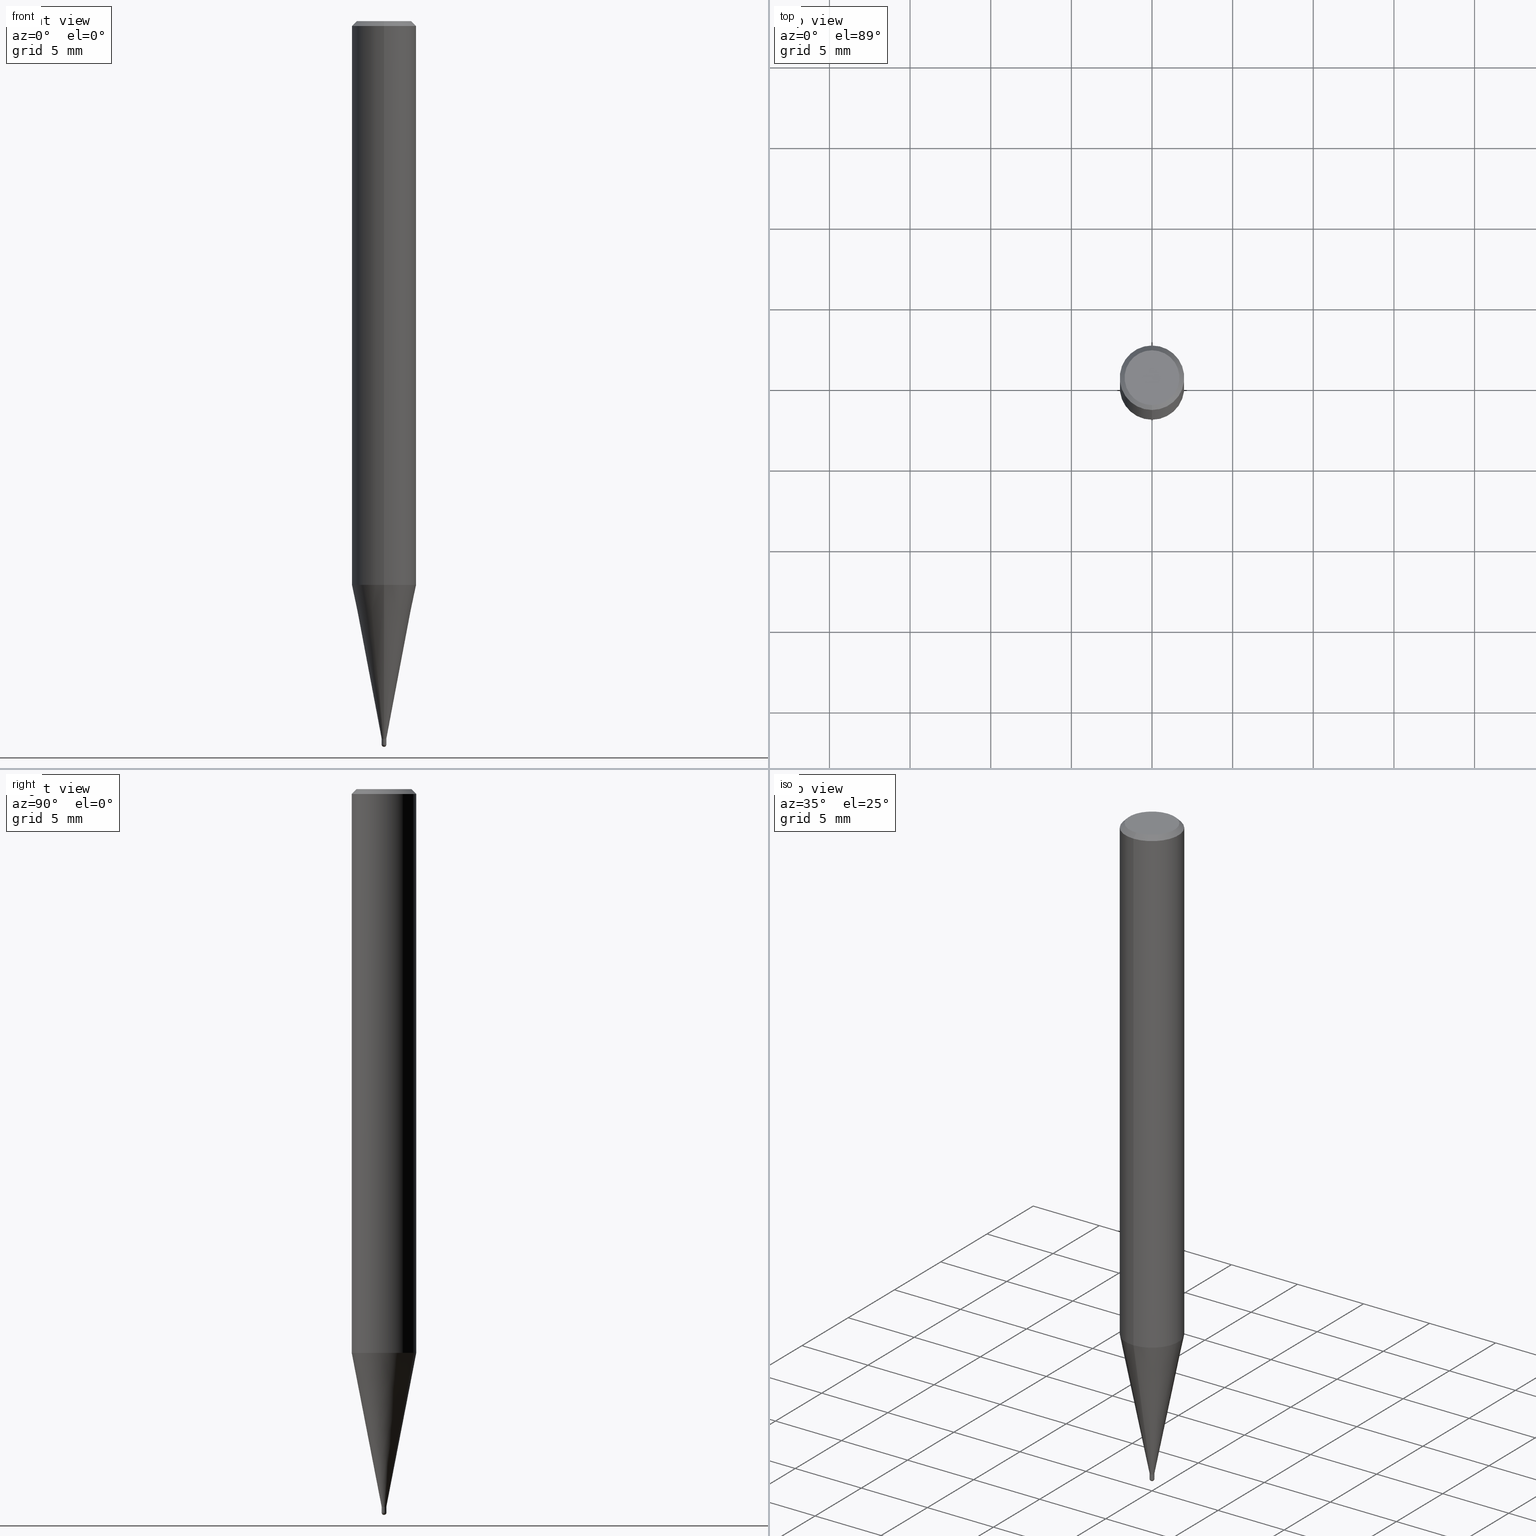
[diagram: canonical four-view strip — front | top / right | iso, engineering-drawing reading convention]
A machine part, canonical four-view strip (front | top / right | iso — engineering-drawing reading convention). The complete STEP part file that produces these views, byte-faithful:
ISO-10303-21;
HEADER;
FILE_DESCRIPTION(('no description'),'unknown implementation level');
FILE_NAME('CSELB2003-005-Huellk.stp','  ',('CIMSOURCE GmbH'),('CADClick - KiM GmbH - www.kimweb.de'),'unknown preprocess','ACIS','unknown authorization');
FILE_SCHEMA(('automotive_design'));
ENDSEC;
DATA;
#1=MECHANICAL_DESIGN_GEOMETRIC_PRESENTATION_REPRESENTATION(' ',(#14,#15,#16,#17,#18,#19,#20,#21,#22,#23,#24,#25,#26,#27,#28,#29,#30,#31,#32,#33,#34,#35,#36,#37,#38,#39,#40,#41,#42,#43,#44,#45,#46,#47,#48,#49,#50,#51,#52,#53,#54,#55,#56,#57,#58,#59,#60,#61,#62,#63,#64,#65,#66,#67,#68,#69,#70,#71,#72,#73,#74),#10);
#2=PRODUCT_DEFINITION_CONTEXT('',#75,'design');
#3=APPLICATION_PROTOCOL_DEFINITION('INTERNATIONAL STANDARD','automotive_design',1994,#75);
#4=PRODUCT_CATEGORY_RELATIONSHIP('NONE','NONE',#76,#77);
#5=SHAPE_DEFINITION_REPRESENTATION(#78,#79);
#6=PRODUCT_DEFINITION_CONTEXT('',#80,'design');
#7=APPLICATION_PROTOCOL_DEFINITION('INTERNATIONAL STANDARD','automotive_design',1994,#80);
#8=PRODUCT_CATEGORY_RELATIONSHIP('NONE','NONE',#81,#82);
#9=SHAPE_DEFINITION_REPRESENTATION(#83,#84);
#10= (GEOMETRIC_REPRESENTATION_CONTEXT(3)GLOBAL_UNCERTAINTY_ASSIGNED_CONTEXT((#87))GLOBAL_UNIT_ASSIGNED_CONTEXT((#89,#90,#91))REPRESENTATION_CONTEXT('NONE','WORKSPACE'));
#14=STYLED_ITEM('',(#93),#94);
#15=STYLED_ITEM('',(#95),#96);
#16=STYLED_ITEM('',(#97),#98);
#17=STYLED_ITEM('',(#99),#100);
#18=STYLED_ITEM('',(#101),#102);
#19=STYLED_ITEM('',(#103),#104);
#20=STYLED_ITEM('',(#105),#106);
#21=STYLED_ITEM('',(#107),#108);
#22=STYLED_ITEM('',(#109),#110);
#23=STYLED_ITEM('',(#111),#112);
#24=STYLED_ITEM('',(#113),#114);
#25=STYLED_ITEM('',(#115),#116);
#26=STYLED_ITEM('',(#117),#118);
#27=STYLED_ITEM('',(#119),#120);
#28=STYLED_ITEM('',(#121),#122);
#29=STYLED_ITEM('',(#123),#124);
#30=STYLED_ITEM('',(#125),#126);
#31=STYLED_ITEM('',(#127),#128);
#32=STYLED_ITEM('',(#129),#130);
#33=STYLED_ITEM('',(#131),#132);
#34=STYLED_ITEM('',(#133),#134);
#35=STYLED_ITEM('',(#135),#136);
#36=STYLED_ITEM('',(#137),#138);
#37=STYLED_ITEM('',(#139),#140);
#38=STYLED_ITEM('',(#141),#142);
#39=STYLED_ITEM('',(#143),#144);
#40=STYLED_ITEM('',(#145),#146);
#41=STYLED_ITEM('',(#147),#148);
#42=STYLED_ITEM('',(#149),#150);
#43=STYLED_ITEM('',(#151),#152);
#44=STYLED_ITEM('',(#153),#154);
#45=STYLED_ITEM('',(#155),#156);
#46=STYLED_ITEM('',(#157),#158);
#47=STYLED_ITEM('',(#159),#160);
#48=STYLED_ITEM('',(#161),#162);
#49=STYLED_ITEM('',(#163),#164);
#50=STYLED_ITEM('',(#165),#166);
#51=STYLED_ITEM('',(#167),#168);
#52=STYLED_ITEM('',(#169),#170);
#53=STYLED_ITEM('',(#171),#172);
#54=STYLED_ITEM('',(#173),#174);
#55=STYLED_ITEM('',(#175),#176);
#56=STYLED_ITEM('',(#177),#178);
#57=STYLED_ITEM('',(#179),#180);
#58=STYLED_ITEM('',(#181),#182);
#59=STYLED_ITEM('',(#183),#184);
#60=STYLED_ITEM('',(#185),#186);
#61=STYLED_ITEM('',(#187),#188);
#62=STYLED_ITEM('',(#189),#190);
#63=STYLED_ITEM('',(#191),#192);
#64=STYLED_ITEM('',(#193),#194);
#65=STYLED_ITEM('',(#195),#196);
#66=STYLED_ITEM('',(#197),#198);
#67=STYLED_ITEM('',(#199),#200);
#68=STYLED_ITEM('',(#201),#202);
#69=STYLED_ITEM('',(#203),#204);
#70=STYLED_ITEM('',(#205),#206);
#71=STYLED_ITEM('',(#207),#208);
#72=STYLED_ITEM('',(#209),#210);
#73=STYLED_ITEM('',(#211),#212);
#74=STYLED_ITEM('',(#213),#214);
#75=APPLICATION_CONTEXT(' ');
#76=PRODUCT_CATEGORY('part','NONE');
#77=PRODUCT_RELATED_PRODUCT_CATEGORY('detail',' ',(#215));
#78=PRODUCT_DEFINITION_SHAPE('NONE','NONE',#216);
#79=ADVANCED_BREP_SHAPE_REPRESENTATION('1',(#210,#217),#10);
#80=APPLICATION_CONTEXT(' ');
#81=PRODUCT_CATEGORY('part','NONE');
#82=PRODUCT_RELATED_PRODUCT_CATEGORY('detail',' ',(#218));
#83=PRODUCT_DEFINITION_SHAPE('NONE','NONE',#219);
#84=ADVANCED_BREP_SHAPE_REPRESENTATION('2',(#204,#220),#10);
#87=UNCERTAINTY_MEASURE_WITH_UNIT(LENGTH_MEASURE(1.0E-006),#89,'','');
#89= (CONVERSION_BASED_UNIT('MILLIMETRE',#223)LENGTH_UNIT()NAMED_UNIT(#226));
#90= (NAMED_UNIT(#228)PLANE_ANGLE_UNIT()SI_UNIT($,.RADIAN.));
#91= (NAMED_UNIT(#228)SOLID_ANGLE_UNIT()SI_UNIT($,.STERADIAN.));
#93=PRESENTATION_STYLE_ASSIGNMENT((#234));
#94=EDGE_CURVE('',#184,#140,#235,.T.);
#95=PRESENTATION_STYLE_ASSIGNMENT((#236));
#96=VERTEX_POINT('',#237);
#97=PRESENTATION_STYLE_ASSIGNMENT((#238));
#98=VERTEX_POINT('',#239);
#99=PRESENTATION_STYLE_ASSIGNMENT((#240));
#100=ADVANCED_FACE('',(#241),#242,.T.);
#101=PRESENTATION_STYLE_ASSIGNMENT((#243));
#102=EDGE_CURVE('',#194,#184,#244,.T.);
#103=PRESENTATION_STYLE_ASSIGNMENT((#245));
#104=ADVANCED_FACE('',(#246),#247,.T.);
#105=PRESENTATION_STYLE_ASSIGNMENT((#248));
#106=EDGE_CURVE('',#186,#120,#249,.T.);
#107=PRESENTATION_STYLE_ASSIGNMENT((#250));
#108=EDGE_CURVE('',#120,#186,#251,.T.);
#109=PRESENTATION_STYLE_ASSIGNMENT((#252));
#110=VERTEX_POINT('',#253);
#111=PRESENTATION_STYLE_ASSIGNMENT((#254));
#112=VERTEX_POINT('',#255);
#113=PRESENTATION_STYLE_ASSIGNMENT((#256));
#114=EDGE_CURVE('',#98,#186,#257,.T.);
#115=PRESENTATION_STYLE_ASSIGNMENT((#258));
#116=ADVANCED_FACE('',(#259),#260,.T.);
#117=PRESENTATION_STYLE_ASSIGNMENT((#261));
#118=ADVANCED_FACE('',(#262),#263,.T.);
#119=PRESENTATION_STYLE_ASSIGNMENT((#264));
#120=VERTEX_POINT('',#265);
#121=PRESENTATION_STYLE_ASSIGNMENT((#266));
#122=VERTEX_POINT('',#267);
#123=PRESENTATION_STYLE_ASSIGNMENT((#268));
#124=EDGE_CURVE('',#160,#122,#269,.T.);
#125=PRESENTATION_STYLE_ASSIGNMENT((#270));
#126=VERTEX_POINT('',#271);
#127=PRESENTATION_STYLE_ASSIGNMENT((#272));
#128=EDGE_CURVE('',#126,#158,#273,.T.);
#129=PRESENTATION_STYLE_ASSIGNMENT((#274));
#130=EDGE_CURVE('',#110,#138,#275,.T.);
#131=PRESENTATION_STYLE_ASSIGNMENT((#276));
#132=ADVANCED_FACE('',(#277),#278,.T.);
#133=PRESENTATION_STYLE_ASSIGNMENT((#279));
#134=ADVANCED_FACE('',(#280),#281,.T.);
#135=PRESENTATION_STYLE_ASSIGNMENT((#282));
#136=EDGE_CURVE('',#112,#110,#283,.T.);
#137=PRESENTATION_STYLE_ASSIGNMENT((#284));
#138=VERTEX_POINT('',#285);
#139=PRESENTATION_STYLE_ASSIGNMENT((#286));
#140=VERTEX_POINT('',#287);
#141=PRESENTATION_STYLE_ASSIGNMENT((#288));
#142=ADVANCED_FACE('',(#289),#290,.T.);
#143=PRESENTATION_STYLE_ASSIGNMENT((#291));
#144=ADVANCED_FACE('',(#292),#293,.T.);
#145=PRESENTATION_STYLE_ASSIGNMENT((#294));
#146=EDGE_CURVE('',#122,#96,#295,.T.);
#147=PRESENTATION_STYLE_ASSIGNMENT((#296));
#148=ADVANCED_FACE('',(#297),#298,.T.);
#149=PRESENTATION_STYLE_ASSIGNMENT((#299));
#150=VERTEX_POINT('',#300);
#151=PRESENTATION_STYLE_ASSIGNMENT((#301));
#152=EDGE_CURVE('',#194,#138,#302,.T.);
#153=PRESENTATION_STYLE_ASSIGNMENT((#303));
#154=EDGE_CURVE('',#158,#96,#304,.T.);
#155=PRESENTATION_STYLE_ASSIGNMENT((#305));
#156=EDGE_CURVE('',#96,#122,#306,.T.);
#157=PRESENTATION_STYLE_ASSIGNMENT((#307));
#158=VERTEX_POINT('',#308);
#159=PRESENTATION_STYLE_ASSIGNMENT((#309));
#160=VERTEX_POINT('',#310);
#161=PRESENTATION_STYLE_ASSIGNMENT((#311));
#162=EDGE_CURVE('',#112,#140,#312,.T.);
#163=PRESENTATION_STYLE_ASSIGNMENT((#313));
#164=EDGE_CURVE('',#150,#160,#314,.T.);
#165=PRESENTATION_STYLE_ASSIGNMENT((#315));
#166=EDGE_CURVE('',#110,#184,#316,.T.);
#167=PRESENTATION_STYLE_ASSIGNMENT((#317));
#168=EDGE_CURVE('',#138,#194,#318,.T.);
#169=PRESENTATION_STYLE_ASSIGNMENT((#319));
#170=VERTEX_POINT('',#320);
#171=PRESENTATION_STYLE_ASSIGNMENT((#321));
#172=EDGE_CURVE('',#96,#150,#322,.T.);
#173=PRESENTATION_STYLE_ASSIGNMENT((#323));
#174=EDGE_CURVE('',#184,#110,#324,.T.);
#175=PRESENTATION_STYLE_ASSIGNMENT((#325));
#176=ADVANCED_FACE('',(#326),#327,.T.);
#177=PRESENTATION_STYLE_ASSIGNMENT((#328));
#178=ADVANCED_FACE('',(#329,#330),#331,.T.);
#179=PRESENTATION_STYLE_ASSIGNMENT((#332));
#180=EDGE_CURVE('',#140,#112,#333,.T.);
#181=PRESENTATION_STYLE_ASSIGNMENT((#334));
#182=EDGE_CURVE('',#170,#98,#335,.T.);
#183=PRESENTATION_STYLE_ASSIGNMENT((#336));
#184=VERTEX_POINT('',#337);
#185=PRESENTATION_STYLE_ASSIGNMENT((#338));
#186=VERTEX_POINT('',#339);
#187=PRESENTATION_STYLE_ASSIGNMENT((#340));
#188=ADVANCED_FACE('',(#341),#342,.T.);
#189=PRESENTATION_STYLE_ASSIGNMENT((#343));
#190=EDGE_CURVE('',#120,#186,#344,.T.);
#191=PRESENTATION_STYLE_ASSIGNMENT((#345));
#192=ADVANCED_FACE('',(#346),#347,.T.);
#193=PRESENTATION_STYLE_ASSIGNMENT((#348));
#194=VERTEX_POINT('',#349);
#195=PRESENTATION_STYLE_ASSIGNMENT((#350));
#196=ADVANCED_FACE('',(#351),#352,.T.);
#197=PRESENTATION_STYLE_ASSIGNMENT((#353));
#198=EDGE_CURVE('',#122,#126,#354,.T.);
#199=PRESENTATION_STYLE_ASSIGNMENT((#355));
#200=ADVANCED_FACE('',(#356),#357,.T.);
#201=PRESENTATION_STYLE_ASSIGNMENT((#358));
#202=EDGE_CURVE('',#160,#150,#359,.T.);
#203=PRESENTATION_STYLE_ASSIGNMENT((#360));
#204=MANIFOLD_SOLID_BREP('2',#361);
#205=PRESENTATION_STYLE_ASSIGNMENT((#362));
#206=EDGE_CURVE('',#98,#170,#363,.T.);
#207=PRESENTATION_STYLE_ASSIGNMENT((#364));
#208=EDGE_CURVE('',#120,#170,#365,.T.);
#209=PRESENTATION_STYLE_ASSIGNMENT((#366));
#210=MANIFOLD_SOLID_BREP('1',#367);
#211=PRESENTATION_STYLE_ASSIGNMENT((#368));
#212=EDGE_CURVE('',#158,#126,#369,.T.);
#213=PRESENTATION_STYLE_ASSIGNMENT((#370));
#214=ADVANCED_FACE('',(#371),#372,.T.);
#215=PRODUCT('1','1','PART-1-DESC',(#373));
#216=PRODUCT_DEFINITION('NONE','NONE',#374,#2);
#217=AXIS2_PLACEMENT_3D('',#375,#376,#377);
#218=PRODUCT('2','2','PART-2-DESC',(#378));
#219=PRODUCT_DEFINITION('NONE','NONE',#379,#6);
#220=AXIS2_PLACEMENT_3D('',#380,#381,#382);
#223=LENGTH_MEASURE_WITH_UNIT(LENGTH_MEASURE(1.0),#383);
#226=DIMENSIONAL_EXPONENTS(1.0,0.0,0.0,0.0,0.0,0.0,0.0);
#228=DIMENSIONAL_EXPONENTS(0.0,0.0,0.0,0.0,0.0,0.0,0.0);
#234=CURVE_STYLE('',#384,POSITIVE_LENGTH_MEASURE(1.0E-006),#385);
#235=LINE('',#386,#387);
#236=POINT_STYLE(' ',#388,POSITIVE_LENGTH_MEASURE(1.0E-006),#389);
#237=CARTESIAN_POINT('',(1.77506690986554E-017,-0.14495,-44.5));
#238=POINT_STYLE(' ',#390,POSITIVE_LENGTH_MEASURE(1.0E-006),#391);
#239=CARTESIAN_POINT('',(0.0,0.1499,-44.76));
#240=SURFACE_STYLE_USAGE(.BOTH.,#392);
#241=FACE_OUTER_BOUND('',#393,.T.);
#242=CYLINDRICAL_SURFACE('',#394,0.14495);
#243=CURVE_STYLE('',#395,POSITIVE_LENGTH_MEASURE(1.0E-006),#396);
#244=LINE('',#397,#398);
#245=SURFACE_STYLE_USAGE(.BOTH.,#399);
#246=FACE_OUTER_BOUND('',#400,.T.);
#247=CONICAL_SURFACE('',#401,1.85,0.785398163397453);
#248=CURVE_STYLE('',#402,POSITIVE_LENGTH_MEASURE(1.0E-006),#403);
#249=CIRCLE('',#404,0.15);
#250=CURVE_STYLE('',#405,POSITIVE_LENGTH_MEASURE(1.0E-006),#406);
#251=CIRCLE('',#407,0.15);
#252=POINT_STYLE(' ',#408,POSITIVE_LENGTH_MEASURE(1.0E-006),#409);
#253=CARTESIAN_POINT('',(0.0,2.0,-0.299999999999997));
#254=POINT_STYLE(' ',#410,POSITIVE_LENGTH_MEASURE(1.0E-006),#411);
#255=CARTESIAN_POINT('',(0.0,1.7,0.0));
#256=CURVE_STYLE('',#412,POSITIVE_LENGTH_MEASURE(1.0E-006),#413);
#257=LINE('',#414,#415);
#258=SURFACE_STYLE_USAGE(.BOTH.,#416);
#259=FACE_OUTER_BOUND('',#417,.T.);
#260=CYLINDRICAL_SURFACE('',#418,0.14495);
#261=SURFACE_STYLE_USAGE(.BOTH.,#419);
#262=FACE_OUTER_BOUND('',#420,.T.);
#263=CONICAL_SURFACE('',#421,0.14995,0.00111111065386396);
#264=POINT_STYLE(' ',#422,POSITIVE_LENGTH_MEASURE(1.0E-006),#423);
#265=CARTESIAN_POINT('',(1.83690953073356E-017,-0.15,-44.85));
#266=POINT_STYLE(' ',#424,POSITIVE_LENGTH_MEASURE(1.0E-006),#425);
#267=CARTESIAN_POINT('',(0.0,0.14495,-44.5));
#268=CURVE_STYLE('',#426,POSITIVE_LENGTH_MEASURE(1.0E-006),#427);
#269=LINE('',#428,#429);
#270=POINT_STYLE(' ',#430,POSITIVE_LENGTH_MEASURE(1.0E-006),#431);
#271=CARTESIAN_POINT('',(0.0,0.14495,-44.76));
#272=CURVE_STYLE('',#432,POSITIVE_LENGTH_MEASURE(1.0E-006),#433);
#273=CIRCLE('',#434,0.14495);
#274=CURVE_STYLE('',#435,POSITIVE_LENGTH_MEASURE(1.0E-006),#436);
#275=LINE('',#437,#438);
#276=SURFACE_STYLE_USAGE(.BOTH.,#439);
#277=FACE_OUTER_BOUND('',#440,.T.);
#278=CONICAL_SURFACE('',#441,1.85,0.785398163397453);
#279=SURFACE_STYLE_USAGE(.BOTH.,#442);
#280=FACE_OUTER_BOUND('',#443,.T.);
#281=PLANE('',#444);
#282=CURVE_STYLE('',#445,POSITIVE_LENGTH_MEASURE(1.0E-006),#446);
#283=LINE('',#447,#448);
#284=POINT_STYLE(' ',#449,POSITIVE_LENGTH_MEASURE(1.0E-006),#450);
#285=CARTESIAN_POINT('',(0.0,2.0,-34.957));
#286=POINT_STYLE(' ',#451,POSITIVE_LENGTH_MEASURE(1.0E-006),#452);
#287=CARTESIAN_POINT('',(2.08183080149804E-016,-1.7,0.0));
#288=SURFACE_STYLE_USAGE(.BOTH.,#453);
#289=FACE_OUTER_BOUND('',#454,.T.);
#290=PLANE('',#455);
#291=SURFACE_STYLE_USAGE(.BOTH.,#456);
#292=FACE_OUTER_BOUND('',#457,.T.);
#293=SPHERICAL_SURFACE('',#458,0.15);
#294=CURVE_STYLE('',#459,POSITIVE_LENGTH_MEASURE(1.0E-006),#460);
#295=CIRCLE('',#461,0.14495);
#296=SURFACE_STYLE_USAGE(.BOTH.,#462);
#297=FACE_OUTER_BOUND('',#463,.T.);
#298=PLANE('',#464);
#299=POINT_STYLE(' ',#465,POSITIVE_LENGTH_MEASURE(1.0E-006),#466);
#300=CARTESIAN_POINT('',(2.44915147732706E-016,-1.99995,-34.957));
#301=CURVE_STYLE('',#467,POSITIVE_LENGTH_MEASURE(1.0E-006),#468);
#302=CIRCLE('',#469,2.0);
#303=CURVE_STYLE('',#470,POSITIVE_LENGTH_MEASURE(1.0E-006),#471);
#304=LINE('',#472,#473);
#305=CURVE_STYLE('',#474,POSITIVE_LENGTH_MEASURE(1.0E-006),#475);
#306=CIRCLE('',#476,0.14495);
#307=POINT_STYLE(' ',#477,POSITIVE_LENGTH_MEASURE(1.0E-006),#478);
#308=CARTESIAN_POINT('',(1.77506690986554E-017,-0.14495,-44.76));
#309=POINT_STYLE(' ',#479,POSITIVE_LENGTH_MEASURE(1.0E-006),#480);
#310=CARTESIAN_POINT('',(0.0,1.99995,-34.957));
#311=CURVE_STYLE('',#481,POSITIVE_LENGTH_MEASURE(1.0E-006),#482);
#312=CIRCLE('',#483,1.7);
#313=CURVE_STYLE('',#484,POSITIVE_LENGTH_MEASURE(1.0E-006),#485);
#314=CIRCLE('',#486,1.99995);
#315=CURVE_STYLE('',#487,POSITIVE_LENGTH_MEASURE(1.0E-006),#488);
#316=CIRCLE('',#489,2.0);
#317=CURVE_STYLE('',#490,POSITIVE_LENGTH_MEASURE(1.0E-006),#491);
#318=CIRCLE('',#492,2.0);
#319=POINT_STYLE(' ',#493,POSITIVE_LENGTH_MEASURE(1.0E-006),#494);
#320=CARTESIAN_POINT('',(1.83568492437974E-017,-0.1499,-44.76));
#321=CURVE_STYLE('',#495,POSITIVE_LENGTH_MEASURE(1.0E-006),#496);
#322=LINE('',#497,#498);
#323=CURVE_STYLE('',#499,POSITIVE_LENGTH_MEASURE(1.0E-006),#500);
#324=CIRCLE('',#501,2.0);
#325=SURFACE_STYLE_USAGE(.BOTH.,#502);
#326=FACE_OUTER_BOUND('',#503,.T.);
#327=CONICAL_SURFACE('',#504,0.14995,0.00111111065386396);
#328=SURFACE_STYLE_USAGE(.BOTH.,#505);
#329=FACE_OUTER_BOUND('',#506,.T.);
#330=FACE_BOUND('',#507,.T.);
#331=PLANE('',#508);
#332=CURVE_STYLE('',#509,POSITIVE_LENGTH_MEASURE(1.0E-006),#510);
#333=CIRCLE('',#511,1.7);
#334=CURVE_STYLE('',#512,POSITIVE_LENGTH_MEASURE(1.0E-006),#513);
#335=CIRCLE('',#514,0.1499);
#336=POINT_STYLE(' ',#515,POSITIVE_LENGTH_MEASURE(1.0E-006),#516);
#337=CARTESIAN_POINT('',(2.44921270764475E-016,-2.0,-0.299999999999997));
#338=POINT_STYLE(' ',#517,POSITIVE_LENGTH_MEASURE(1.0E-006),#518);
#339=CARTESIAN_POINT('',(0.0,0.15,-44.85));
#340=SURFACE_STYLE_USAGE(.BOTH.,#519);
#341=FACE_OUTER_BOUND('',#520,.T.);
#342=SPHERICAL_SURFACE('',#521,0.15);
#343=CURVE_STYLE('',#522,POSITIVE_LENGTH_MEASURE(1.0E-006),#523);
#344=CIRCLE('',#524,0.15);
#345=SURFACE_STYLE_USAGE(.BOTH.,#525);
#346=FACE_OUTER_BOUND('',#526,.T.);
#347=CONICAL_SURFACE('',#527,1.07245,0.19198911666217);
#348=POINT_STYLE(' ',#528,POSITIVE_LENGTH_MEASURE(1.0E-006),#529);
#349=CARTESIAN_POINT('',(2.44921270764475E-016,-2.0,-34.957));
#350=SURFACE_STYLE_USAGE(.BOTH.,#530);
#351=FACE_OUTER_BOUND('',#531,.T.);
#352=CYLINDRICAL_SURFACE('',#532,2.0);
#353=CURVE_STYLE('',#533,POSITIVE_LENGTH_MEASURE(1.0E-006),#534);
#354=LINE('',#535,#536);
#355=SURFACE_STYLE_USAGE(.BOTH.,#537);
#356=FACE_OUTER_BOUND('',#538,.T.);
#357=CYLINDRICAL_SURFACE('',#539,2.0);
#358=CURVE_STYLE('',#540,POSITIVE_LENGTH_MEASURE(1.0E-006),#541);
#359=CIRCLE('',#542,1.99995);
#360=SURFACE_STYLE_USAGE(.BOTH.,#543);
#361=CLOSED_SHELL('',(#188,#176,#142,#118,#144));
#362=CURVE_STYLE('',#544,POSITIVE_LENGTH_MEASURE(1.0E-006),#545);
#363=CIRCLE('',#546,0.1499);
#364=CURVE_STYLE('',#547,POSITIVE_LENGTH_MEASURE(1.0E-006),#548);
#365=LINE('',#549,#550);
#366=SURFACE_STYLE_USAGE(.BOTH.,#551);
#367=CLOSED_SHELL('',(#100,#214,#200,#104,#178,#148,#132,#196,#192,#116,#134));
#368=CURVE_STYLE('',#552,POSITIVE_LENGTH_MEASURE(1.0E-006),#553);
#369=CIRCLE('',#554,0.14495);
#370=SURFACE_STYLE_USAGE(.BOTH.,#555);
#371=FACE_OUTER_BOUND('',#556,.T.);
#372=CONICAL_SURFACE('',#557,1.07245,0.19198911666217);
#373=PRODUCT_CONTEXT('',#75,'mechanical');
#374=PRODUCT_DEFINITION_FORMATION_WITH_SPECIFIED_SOURCE(' ','NONE',#215,.NOT_KNOWN.);
#375=CARTESIAN_POINT('',(0.0,0.0,0.0));
#376=DIRECTION('',(0.0,0.0,1.0));
#377=DIRECTION('',(1.0,0.0,0.0));
#378=PRODUCT_CONTEXT('',#80,'mechanical');
#379=PRODUCT_DEFINITION_FORMATION_WITH_SPECIFIED_SOURCE(' ','NONE',#218,.NOT_KNOWN.);
#380=CARTESIAN_POINT('',(0.0,0.0,0.0));
#381=DIRECTION('',(0.0,0.0,1.0));
#382=DIRECTION('',(1.0,0.0,0.0));
#383= (NAMED_UNIT(#226)LENGTH_UNIT()SI_UNIT(.MILLI.,.METRE.));
#384=DRAUGHTING_PRE_DEFINED_CURVE_FONT('continuous');
#385=COLOUR_RGB('',0.498039215803146,0.498039215803146,0.498039215803146);
#386=CARTESIAN_POINT('',(2.2655217545714E-016,-1.85,-0.149999999999999));
#387=VECTOR('',#559,1.0);
#388=PRE_DEFINED_MARKER('');
#389=COLOUR_RGB('',0.498039215803146,0.498039215803146,0.498039215803146);
#390=PRE_DEFINED_MARKER('');
#391=COLOUR_RGB('',0.800000011920929,0.800000011920929,0.800000011920929);
#392=SURFACE_SIDE_STYLE('',(#560));
#393=EDGE_LOOP('',(#561,#562,#563,#564));
#394=AXIS2_PLACEMENT_3D('',#565,#566,#567);
#395=DRAUGHTING_PRE_DEFINED_CURVE_FONT('continuous');
#396=COLOUR_RGB('',0.498039215803146,0.498039215803146,0.498039215803146);
#397=CARTESIAN_POINT('',(2.44921270764475E-016,-2.0,-17.6285));
#398=VECTOR('',#568,1.0);
#399=SURFACE_SIDE_STYLE('',(#569));
#400=EDGE_LOOP('',(#570,#571,#572,#573));
#401=AXIS2_PLACEMENT_3D('',#574,#575,#576);
#402=DRAUGHTING_PRE_DEFINED_CURVE_FONT('continuous');
#403=COLOUR_RGB('',0.800000011920929,0.800000011920929,0.800000011920929);
#404=AXIS2_PLACEMENT_3D('',#577,#578,#579);
#405=DRAUGHTING_PRE_DEFINED_CURVE_FONT('continuous');
#406=COLOUR_RGB('',0.800000011920929,0.800000011920929,0.800000011920929);
#407=AXIS2_PLACEMENT_3D('',#580,#581,#582);
#408=PRE_DEFINED_MARKER('');
#409=COLOUR_RGB('',0.498039215803146,0.498039215803146,0.498039215803146);
#410=PRE_DEFINED_MARKER('');
#411=COLOUR_RGB('',0.498039215803146,0.498039215803146,0.498039215803146);
#412=DRAUGHTING_PRE_DEFINED_CURVE_FONT('continuous');
#413=COLOUR_RGB('',0.800000011920929,0.800000011920929,0.800000011920929);
#414=CARTESIAN_POINT('',(-1.83629722755665E-017,0.14995,-44.805));
#415=VECTOR('',#583,1.0);
#416=SURFACE_SIDE_STYLE('',(#584));
#417=EDGE_LOOP('',(#585,#586,#587,#588));
#418=AXIS2_PLACEMENT_3D('',#589,#590,#591);
#419=SURFACE_SIDE_STYLE('',(#592));
#420=EDGE_LOOP('',(#593,#594,#595,#596));
#421=AXIS2_PLACEMENT_3D('',#597,#598,#599);
#422=PRE_DEFINED_MARKER('');
#423=COLOUR_RGB('',0.800000011920929,0.800000011920929,0.800000011920929);
#424=PRE_DEFINED_MARKER('');
#425=COLOUR_RGB('',0.498039215803146,0.498039215803146,0.498039215803146);
#426=DRAUGHTING_PRE_DEFINED_CURVE_FONT('continuous');
#427=COLOUR_RGB('',0.498039215803146,0.498039215803146,0.498039215803146);
#428=CARTESIAN_POINT('',(-1.31332908415681E-016,1.07245,-39.7285));
#429=VECTOR('',#600,1.0);
#430=PRE_DEFINED_MARKER('');
#431=COLOUR_RGB('',0.498039215803146,0.498039215803146,0.498039215803146);
#432=DRAUGHTING_PRE_DEFINED_CURVE_FONT('continuous');
#433=COLOUR_RGB('',0.498039215803146,0.498039215803146,0.498039215803146);
#434=AXIS2_PLACEMENT_3D('',#601,#602,#603);
#435=DRAUGHTING_PRE_DEFINED_CURVE_FONT('continuous');
#436=COLOUR_RGB('',0.498039215803146,0.498039215803146,0.498039215803146);
#437=CARTESIAN_POINT('',(-2.44921270764475E-016,2.0,-17.6285));
#438=VECTOR('',#604,1.0);
#439=SURFACE_SIDE_STYLE('',(#605));
#440=EDGE_LOOP('',(#606,#607,#608,#609));
#441=AXIS2_PLACEMENT_3D('',#610,#611,#612);
#442=SURFACE_SIDE_STYLE('',(#613));
#443=EDGE_LOOP('',(#614,#615));
#444=AXIS2_PLACEMENT_3D('',#616,#617,#618);
#445=DRAUGHTING_PRE_DEFINED_CURVE_FONT('continuous');
#446=COLOUR_RGB('',0.498039215803146,0.498039215803146,0.498039215803146);
#447=CARTESIAN_POINT('',(-2.2655217545714E-016,1.85,-0.149999999999999));
#448=VECTOR('',#619,1.0);
#449=PRE_DEFINED_MARKER('');
#450=COLOUR_RGB('',0.498039215803146,0.498039215803146,0.498039215803146);
#451=PRE_DEFINED_MARKER('');
#452=COLOUR_RGB('',0.498039215803146,0.498039215803146,0.498039215803146);
#453=SURFACE_SIDE_STYLE('',(#620));
#454=EDGE_LOOP('',(#621,#622));
#455=AXIS2_PLACEMENT_3D('',#623,#624,#625);
#456=SURFACE_SIDE_STYLE('',(#626));
#457=EDGE_LOOP('',(#627,#628));
#458=AXIS2_PLACEMENT_3D('',#629,#630,#631);
#459=DRAUGHTING_PRE_DEFINED_CURVE_FONT('continuous');
#460=COLOUR_RGB('',0.498039215803146,0.498039215803146,0.498039215803146);
#461=AXIS2_PLACEMENT_3D('',#632,#633,#634);
#462=SURFACE_SIDE_STYLE('',(#635));
#463=EDGE_LOOP('',(#636,#637));
#464=AXIS2_PLACEMENT_3D('',#638,#639,#640);
#465=PRE_DEFINED_MARKER('');
#466=COLOUR_RGB('',0.498039215803146,0.498039215803146,0.498039215803146);
#467=DRAUGHTING_PRE_DEFINED_CURVE_FONT('continuous');
#468=COLOUR_RGB('',0.498039215803146,0.498039215803146,0.498039215803146);
#469=AXIS2_PLACEMENT_3D('',#641,#642,#643);
#470=DRAUGHTING_PRE_DEFINED_CURVE_FONT('continuous');
#471=COLOUR_RGB('',0.498039215803146,0.498039215803146,0.498039215803146);
#472=CARTESIAN_POINT('',(1.77506690986554E-017,-0.14495,-44.63));
#473=VECTOR('',#644,1.0);
#474=DRAUGHTING_PRE_DEFINED_CURVE_FONT('continuous');
#475=COLOUR_RGB('',0.498039215803146,0.498039215803146,0.498039215803146);
#476=AXIS2_PLACEMENT_3D('',#645,#646,#647);
#477=PRE_DEFINED_MARKER('');
#478=COLOUR_RGB('',0.498039215803146,0.498039215803146,0.498039215803146);
#479=PRE_DEFINED_MARKER('');
#480=COLOUR_RGB('',0.498039215803146,0.498039215803146,0.498039215803146);
#481=DRAUGHTING_PRE_DEFINED_CURVE_FONT('continuous');
#482=COLOUR_RGB('',0.498039215803146,0.498039215803146,0.498039215803146);
#483=AXIS2_PLACEMENT_3D('',#648,#649,#650);
#484=DRAUGHTING_PRE_DEFINED_CURVE_FONT('continuous');
#485=COLOUR_RGB('',0.498039215803146,0.498039215803146,0.498039215803146);
#486=AXIS2_PLACEMENT_3D('',#651,#652,#653);
#487=DRAUGHTING_PRE_DEFINED_CURVE_FONT('continuous');
#488=COLOUR_RGB('',0.498039215803146,0.498039215803146,0.498039215803146);
#489=AXIS2_PLACEMENT_3D('',#654,#655,#656);
#490=DRAUGHTING_PRE_DEFINED_CURVE_FONT('continuous');
#491=COLOUR_RGB('',0.498039215803146,0.498039215803146,0.498039215803146);
#492=AXIS2_PLACEMENT_3D('',#657,#658,#659);
#493=PRE_DEFINED_MARKER('');
#494=COLOUR_RGB('',0.800000011920929,0.800000011920929,0.800000011920929);
#495=DRAUGHTING_PRE_DEFINED_CURVE_FONT('continuous');
#496=COLOUR_RGB('',0.498039215803146,0.498039215803146,0.498039215803146);
#497=CARTESIAN_POINT('',(1.31332908415681E-016,-1.07245,-39.7285));
#498=VECTOR('',#660,1.0);
#499=DRAUGHTING_PRE_DEFINED_CURVE_FONT('continuous');
#500=COLOUR_RGB('',0.498039215803146,0.498039215803146,0.498039215803146);
#501=AXIS2_PLACEMENT_3D('',#661,#662,#663);
#502=SURFACE_SIDE_STYLE('',(#664));
#503=EDGE_LOOP('',(#665,#666,#667,#668));
#504=AXIS2_PLACEMENT_3D('',#669,#670,#671);
#505=SURFACE_SIDE_STYLE('',(#672));
#506=EDGE_LOOP('',(#673,#674));
#507=EDGE_LOOP('',(#675,#676));
#508=AXIS2_PLACEMENT_3D('',#677,#678,#679);
#509=DRAUGHTING_PRE_DEFINED_CURVE_FONT('continuous');
#510=COLOUR_RGB('',0.498039215803146,0.498039215803146,0.498039215803146);
#511=AXIS2_PLACEMENT_3D('',#680,#681,#682);
#512=DRAUGHTING_PRE_DEFINED_CURVE_FONT('continuous');
#513=COLOUR_RGB('',0.800000011920929,0.800000011920929,0.800000011920929);
#514=AXIS2_PLACEMENT_3D('',#683,#684,#685);
#515=PRE_DEFINED_MARKER('');
#516=COLOUR_RGB('',0.498039215803146,0.498039215803146,0.498039215803146);
#517=PRE_DEFINED_MARKER('');
#518=COLOUR_RGB('',0.800000011920929,0.800000011920929,0.800000011920929);
#519=SURFACE_SIDE_STYLE('',(#686));
#520=EDGE_LOOP('',(#687,#688));
#521=AXIS2_PLACEMENT_3D('',#689,#690,#691);
#522=DRAUGHTING_PRE_DEFINED_CURVE_FONT('continuous');
#523=COLOUR_RGB('',0.800000011920929,0.800000011920929,0.800000011920929);
#524=AXIS2_PLACEMENT_3D('',#692,#693,#694);
#525=SURFACE_SIDE_STYLE('',(#695));
#526=EDGE_LOOP('',(#696,#697,#698,#699));
#527=AXIS2_PLACEMENT_3D('',#700,#701,#702);
#528=PRE_DEFINED_MARKER('');
#529=COLOUR_RGB('',0.498039215803146,0.498039215803146,0.498039215803146);
#530=SURFACE_SIDE_STYLE('',(#703));
#531=EDGE_LOOP('',(#704,#705,#706,#707));
#532=AXIS2_PLACEMENT_3D('',#708,#709,#710);
#533=DRAUGHTING_PRE_DEFINED_CURVE_FONT('continuous');
#534=COLOUR_RGB('',0.498039215803146,0.498039215803146,0.498039215803146);
#535=CARTESIAN_POINT('',(-1.77506690986554E-017,0.14495,-44.63));
#536=VECTOR('',#711,1.0);
#537=SURFACE_SIDE_STYLE('',(#712));
#538=EDGE_LOOP('',(#713,#714,#715,#716));
#539=AXIS2_PLACEMENT_3D('',#717,#718,#719);
#540=DRAUGHTING_PRE_DEFINED_CURVE_FONT('continuous');
#541=COLOUR_RGB('',0.498039215803146,0.498039215803146,0.498039215803146);
#542=AXIS2_PLACEMENT_3D('',#720,#721,#722);
#543=SURFACE_SIDE_STYLE('',(#723));
#544=DRAUGHTING_PRE_DEFINED_CURVE_FONT('continuous');
#545=COLOUR_RGB('',0.800000011920929,0.800000011920929,0.800000011920929);
#546=AXIS2_PLACEMENT_3D('',#724,#725,#726);
#547=DRAUGHTING_PRE_DEFINED_CURVE_FONT('continuous');
#548=COLOUR_RGB('',0.800000011920929,0.800000011920929,0.800000011920929);
#549=CARTESIAN_POINT('',(1.83629722755665E-017,-0.14995,-44.805));
#550=VECTOR('',#727,1.0);
#551=SURFACE_SIDE_STYLE('',(#728));
#552=DRAUGHTING_PRE_DEFINED_CURVE_FONT('continuous');
#553=COLOUR_RGB('',0.498039215803146,0.498039215803146,0.498039215803146);
#554=AXIS2_PLACEMENT_3D('',#729,#730,#731);
#555=SURFACE_SIDE_STYLE('',(#732));
#556=EDGE_LOOP('',(#733,#734,#735,#736));
#557=AXIS2_PLACEMENT_3D('',#737,#738,#739);
#559=DIRECTION('',(-8.6592745707194E-017,0.707106781186551,0.707106781186544));
#560=SURFACE_STYLE_FILL_AREA(#740);
#561=ORIENTED_EDGE('',*,*,#198,.F.);
#562=ORIENTED_EDGE('',*,*,#146,.T.);
#563=ORIENTED_EDGE('',*,*,#154,.F.);
#564=ORIENTED_EDGE('',*,*,#128,.F.);
#565=CARTESIAN_POINT('',(0.0,0.0,-44.63));
#566=DIRECTION('',(-0.0,-0.0,1.0));
#567=DIRECTION('',(0.0,1.0,0.0));
#568=DIRECTION('',(-0.0,-0.0,1.0));
#569=SURFACE_STYLE_FILL_AREA(#741);
#570=ORIENTED_EDGE('',*,*,#136,.F.);
#571=ORIENTED_EDGE('',*,*,#162,.T.);
#572=ORIENTED_EDGE('',*,*,#94,.F.);
#573=ORIENTED_EDGE('',*,*,#166,.F.);
#574=CARTESIAN_POINT('',(0.0,0.0,-0.149999999999999));
#575=DIRECTION('',(0.0,-0.0,-1.0));
#576=DIRECTION('',(0.0,1.0,0.0));
#577=CARTESIAN_POINT('',(0.0,0.0,-44.85));
#578=DIRECTION('',(0.0,0.0,-1.0));
#579=DIRECTION('',(0.0,1.0,0.0));
#580=CARTESIAN_POINT('',(0.0,0.0,-44.85));
#581=DIRECTION('',(1.0,0.0,1.22460635382239E-016));
#582=DIRECTION('',(-1.22460635382239E-016,0.0,1.0));
#583=DIRECTION('',(-1.36067288654788E-019,0.00111111042524057,-0.999999382716621));
#584=SURFACE_STYLE_FILL_AREA(#742);
#585=ORIENTED_EDGE('',*,*,#198,.T.);
#586=ORIENTED_EDGE('',*,*,#212,.F.);
#587=ORIENTED_EDGE('',*,*,#154,.T.);
#588=ORIENTED_EDGE('',*,*,#156,.T.);
#589=CARTESIAN_POINT('',(0.0,0.0,-44.63));
#590=DIRECTION('',(-0.0,-0.0,1.0));
#591=DIRECTION('',(0.0,1.0,0.0));
#592=SURFACE_STYLE_FILL_AREA(#743);
#593=ORIENTED_EDGE('',*,*,#114,.T.);
#594=ORIENTED_EDGE('',*,*,#190,.F.);
#595=ORIENTED_EDGE('',*,*,#208,.T.);
#596=ORIENTED_EDGE('',*,*,#182,.T.);
#597=CARTESIAN_POINT('',(0.0,0.0,-44.805));
#598=DIRECTION('',(0.0,-0.0,-1.0));
#599=DIRECTION('',(0.0,1.0,0.0));
#600=DIRECTION('',(2.33669392942694E-017,-0.190811841056793,-0.981626630299177));
#601=CARTESIAN_POINT('',(0.0,0.0,-44.76));
#602=DIRECTION('',(0.0,0.0,-1.0));
#603=DIRECTION('',(0.0,1.0,0.0));
#604=DIRECTION('',(0.0,0.0,-1.0));
#605=SURFACE_STYLE_FILL_AREA(#744);
#606=ORIENTED_EDGE('',*,*,#136,.T.);
#607=ORIENTED_EDGE('',*,*,#174,.F.);
#608=ORIENTED_EDGE('',*,*,#94,.T.);
#609=ORIENTED_EDGE('',*,*,#180,.T.);
#610=CARTESIAN_POINT('',(0.0,0.0,-0.149999999999999));
#611=DIRECTION('',(0.0,-0.0,-1.0));
#612=DIRECTION('',(0.0,1.0,0.0));
#613=SURFACE_STYLE_FILL_AREA(#745);
#614=ORIENTED_EDGE('',*,*,#128,.T.);
#615=ORIENTED_EDGE('',*,*,#212,.T.);
#616=CARTESIAN_POINT('',(0.0,0.072475,-44.76));
#617=DIRECTION('',(0.0,0.0,-1.0));
#618=DIRECTION('',(0.0,1.0,0.0));
#619=DIRECTION('',(-8.6592745707194E-017,0.707106781186551,-0.707106781186544));
#620=SURFACE_STYLE_FILL_AREA(#746);
#621=ORIENTED_EDGE('',*,*,#206,.F.);
#622=ORIENTED_EDGE('',*,*,#182,.F.);
#623=CARTESIAN_POINT('',(0.0,0.07495,-44.76));
#624=DIRECTION('',(-0.0,0.0,1.0));
#625=DIRECTION('',(0.0,-1.0,0.0));
#626=SURFACE_STYLE_FILL_AREA(#747);
#627=ORIENTED_EDGE('',*,*,#108,.T.);
#628=ORIENTED_EDGE('',*,*,#106,.T.);
#629=CARTESIAN_POINT('',(0.0,0.0,-44.85));
#630=DIRECTION('',(0.0,1.0,0.0));
#631=DIRECTION('',(0.0,0.0,-1.0));
#632=CARTESIAN_POINT('',(0.0,0.0,-44.5));
#633=DIRECTION('',(0.0,0.0,-1.0));
#634=DIRECTION('',(0.0,1.0,0.0));
#635=SURFACE_STYLE_FILL_AREA(#748);
#636=ORIENTED_EDGE('',*,*,#162,.F.);
#637=ORIENTED_EDGE('',*,*,#180,.F.);
#638=CARTESIAN_POINT('',(0.0,0.85,0.0));
#639=DIRECTION('',(-0.0,0.0,1.0));
#640=DIRECTION('',(0.0,-1.0,0.0));
#641=CARTESIAN_POINT('',(0.0,0.0,-34.957));
#642=DIRECTION('',(0.0,0.0,-1.0));
#643=DIRECTION('',(0.0,1.0,0.0));
#644=DIRECTION('',(-0.0,-0.0,1.0));
#645=CARTESIAN_POINT('',(0.0,0.0,-44.5));
#646=DIRECTION('',(0.0,0.0,-1.0));
#647=DIRECTION('',(0.0,1.0,0.0));
#648=CARTESIAN_POINT('',(0.0,0.0,0.0));
#649=DIRECTION('',(0.0,0.0,-1.0));
#650=DIRECTION('',(0.0,1.0,0.0));
#651=CARTESIAN_POINT('',(0.0,0.0,-34.957));
#652=DIRECTION('',(0.0,0.0,-1.0));
#653=DIRECTION('',(0.0,1.0,0.0));
#654=CARTESIAN_POINT('',(0.0,0.0,-0.299999999999997));
#655=DIRECTION('',(0.0,0.0,-1.0));
#656=DIRECTION('',(0.0,1.0,0.0));
#657=CARTESIAN_POINT('',(0.0,0.0,-34.957));
#658=DIRECTION('',(0.0,0.0,-1.0));
#659=DIRECTION('',(0.0,1.0,0.0));
#660=DIRECTION('',(2.33669392942694E-017,-0.190811841056793,0.981626630299177));
#661=CARTESIAN_POINT('',(0.0,0.0,-0.299999999999997));
#662=DIRECTION('',(0.0,0.0,-1.0));
#663=DIRECTION('',(0.0,1.0,0.0));
#664=SURFACE_STYLE_FILL_AREA(#749);
#665=ORIENTED_EDGE('',*,*,#114,.F.);
#666=ORIENTED_EDGE('',*,*,#206,.T.);
#667=ORIENTED_EDGE('',*,*,#208,.F.);
#668=ORIENTED_EDGE('',*,*,#106,.F.);
#669=CARTESIAN_POINT('',(0.0,0.0,-44.805));
#670=DIRECTION('',(0.0,-0.0,-1.0));
#671=DIRECTION('',(0.0,1.0,0.0));
#672=SURFACE_STYLE_FILL_AREA(#750);
#673=ORIENTED_EDGE('',*,*,#168,.T.);
#674=ORIENTED_EDGE('',*,*,#152,.T.);
#675=ORIENTED_EDGE('',*,*,#202,.F.);
#676=ORIENTED_EDGE('',*,*,#164,.F.);
#677=CARTESIAN_POINT('',(0.0,1.0,-34.957));
#678=DIRECTION('',(0.0,0.0,-1.0));
#679=DIRECTION('',(0.0,1.0,0.0));
#680=CARTESIAN_POINT('',(0.0,0.0,0.0));
#681=DIRECTION('',(0.0,0.0,-1.0));
#682=DIRECTION('',(0.0,1.0,0.0));
#683=CARTESIAN_POINT('',(0.0,0.0,-44.76));
#684=DIRECTION('',(0.0,0.0,-1.0));
#685=DIRECTION('',(0.0,1.0,0.0));
#686=SURFACE_STYLE_FILL_AREA(#751);
#687=ORIENTED_EDGE('',*,*,#108,.F.);
#688=ORIENTED_EDGE('',*,*,#190,.T.);
#689=CARTESIAN_POINT('',(0.0,0.0,-44.85));
#690=DIRECTION('',(0.0,1.0,0.0));
#691=DIRECTION('',(0.0,0.0,-1.0));
#692=CARTESIAN_POINT('',(0.0,0.0,-44.85));
#693=DIRECTION('',(0.0,0.0,-1.0));
#694=DIRECTION('',(0.0,1.0,0.0));
#695=SURFACE_STYLE_FILL_AREA(#752);
#696=ORIENTED_EDGE('',*,*,#124,.T.);
#697=ORIENTED_EDGE('',*,*,#156,.F.);
#698=ORIENTED_EDGE('',*,*,#172,.T.);
#699=ORIENTED_EDGE('',*,*,#164,.T.);
#700=CARTESIAN_POINT('',(0.0,0.0,-39.7285));
#701=DIRECTION('',(-0.0,-0.0,1.0));
#702=DIRECTION('',(0.0,1.0,0.0));
#703=SURFACE_STYLE_FILL_AREA(#753);
#704=ORIENTED_EDGE('',*,*,#130,.T.);
#705=ORIENTED_EDGE('',*,*,#152,.F.);
#706=ORIENTED_EDGE('',*,*,#102,.T.);
#707=ORIENTED_EDGE('',*,*,#174,.T.);
#708=CARTESIAN_POINT('',(0.0,0.0,-17.6285));
#709=DIRECTION('',(-0.0,-0.0,1.0));
#710=DIRECTION('',(0.0,1.0,0.0));
#711=DIRECTION('',(0.0,0.0,-1.0));
#712=SURFACE_STYLE_FILL_AREA(#754);
#713=ORIENTED_EDGE('',*,*,#130,.F.);
#714=ORIENTED_EDGE('',*,*,#166,.T.);
#715=ORIENTED_EDGE('',*,*,#102,.F.);
#716=ORIENTED_EDGE('',*,*,#168,.F.);
#717=CARTESIAN_POINT('',(0.0,0.0,-17.6285));
#718=DIRECTION('',(-0.0,-0.0,1.0));
#719=DIRECTION('',(0.0,1.0,0.0));
#720=CARTESIAN_POINT('',(0.0,0.0,-34.957));
#721=DIRECTION('',(0.0,0.0,-1.0));
#722=DIRECTION('',(0.0,1.0,0.0));
#723=SURFACE_STYLE_FILL_AREA(#755);
#724=CARTESIAN_POINT('',(0.0,0.0,-44.76));
#725=DIRECTION('',(0.0,0.0,-1.0));
#726=DIRECTION('',(0.0,1.0,0.0));
#727=DIRECTION('',(-1.36067288654788E-019,0.00111111042524057,0.999999382716621));
#728=SURFACE_STYLE_FILL_AREA(#756);
#729=CARTESIAN_POINT('',(0.0,0.0,-44.76));
#730=DIRECTION('',(0.0,0.0,-1.0));
#731=DIRECTION('',(0.0,1.0,0.0));
#732=SURFACE_STYLE_FILL_AREA(#757);
#733=ORIENTED_EDGE('',*,*,#124,.F.);
#734=ORIENTED_EDGE('',*,*,#202,.T.);
#735=ORIENTED_EDGE('',*,*,#172,.F.);
#736=ORIENTED_EDGE('',*,*,#146,.F.);
#737=CARTESIAN_POINT('',(0.0,0.0,-39.7285));
#738=DIRECTION('',(-0.0,-0.0,1.0));
#739=DIRECTION('',(0.0,1.0,0.0));
#740=FILL_AREA_STYLE('',(#758));
#741=FILL_AREA_STYLE('',(#759));
#742=FILL_AREA_STYLE('',(#760));
#743=FILL_AREA_STYLE('',(#761));
#744=FILL_AREA_STYLE('',(#762));
#745=FILL_AREA_STYLE('',(#763));
#746=FILL_AREA_STYLE('',(#764));
#747=FILL_AREA_STYLE('',(#765));
#748=FILL_AREA_STYLE('',(#766));
#749=FILL_AREA_STYLE('',(#767));
#750=FILL_AREA_STYLE('',(#768));
#751=FILL_AREA_STYLE('',(#769));
#752=FILL_AREA_STYLE('',(#770));
#753=FILL_AREA_STYLE('',(#771));
#754=FILL_AREA_STYLE('',(#772));
#755=FILL_AREA_STYLE('',(#773));
#756=FILL_AREA_STYLE('',(#774));
#757=FILL_AREA_STYLE('',(#775));
#758=FILL_AREA_STYLE_COLOUR('',#776);
#759=FILL_AREA_STYLE_COLOUR('',#777);
#760=FILL_AREA_STYLE_COLOUR('',#778);
#761=FILL_AREA_STYLE_COLOUR('',#779);
#762=FILL_AREA_STYLE_COLOUR('',#780);
#763=FILL_AREA_STYLE_COLOUR('',#781);
#764=FILL_AREA_STYLE_COLOUR('',#782);
#765=FILL_AREA_STYLE_COLOUR('',#783);
#766=FILL_AREA_STYLE_COLOUR('',#784);
#767=FILL_AREA_STYLE_COLOUR('',#785);
#768=FILL_AREA_STYLE_COLOUR('',#786);
#769=FILL_AREA_STYLE_COLOUR('',#787);
#770=FILL_AREA_STYLE_COLOUR('',#788);
#771=FILL_AREA_STYLE_COLOUR('',#789);
#772=FILL_AREA_STYLE_COLOUR('',#790);
#773=FILL_AREA_STYLE_COLOUR('',#791);
#774=FILL_AREA_STYLE_COLOUR('',#792);
#775=FILL_AREA_STYLE_COLOUR('',#793);
#776=COLOUR_RGB('',0.498039215803146,0.498039215803146,0.498039215803146);
#777=COLOUR_RGB('',0.498039215803146,0.498039215803146,0.498039215803146);
#778=COLOUR_RGB('',0.498039215803146,0.498039215803146,0.498039215803146);
#779=COLOUR_RGB('',0.800000011920929,0.800000011920929,0.800000011920929);
#780=COLOUR_RGB('',0.498039215803146,0.498039215803146,0.498039215803146);
#781=COLOUR_RGB('',0.498039215803146,0.498039215803146,0.498039215803146);
#782=COLOUR_RGB('',0.800000011920929,0.800000011920929,0.800000011920929);
#783=COLOUR_RGB('',0.800000011920929,0.800000011920929,0.800000011920929);
#784=COLOUR_RGB('',0.498039215803146,0.498039215803146,0.498039215803146);
#785=COLOUR_RGB('',0.800000011920929,0.800000011920929,0.800000011920929);
#786=COLOUR_RGB('',0.498039215803146,0.498039215803146,0.498039215803146);
#787=COLOUR_RGB('',0.800000011920929,0.800000011920929,0.800000011920929);
#788=COLOUR_RGB('',0.498039215803146,0.498039215803146,0.498039215803146);
#789=COLOUR_RGB('',0.498039215803146,0.498039215803146,0.498039215803146);
#790=COLOUR_RGB('',0.498039215803146,0.498039215803146,0.498039215803146);
#791=COLOUR_RGB('',0.800000011920929,0.800000011920929,0.800000011920929);
#792=COLOUR_RGB('',0.498039215803146,0.498039215803146,0.498039215803146);
#793=COLOUR_RGB('',0.498039215803146,0.498039215803146,0.498039215803146);
#794=AXIS2_PLACEMENT_3D('PCS',#795,#796,#797);
#795=CARTESIAN_POINT('',(0.0,0.0,0.0));
#796=DIRECTION('',(0.0,0.0,1.0));
#797=DIRECTION('',(1.0,0.0,0.0));
#798=AXIS2_PLACEMENT_3D('CIP',#799,#800,#801);
#799=CARTESIAN_POINT('',(0.0,0.0,-45.0));
#800=DIRECTION('',(0.0,0.0,1.0));
#801=DIRECTION('',(1.0,0.0,0.0));
#802=AXIS2_PLACEMENT_3D('CRP',#803,#804,#805);
#803=CARTESIAN_POINT('',(-0.15,0.0,-45.0));
#804=DIRECTION('',(0.0,0.0,1.0));
#805=DIRECTION('',(1.0,0.0,0.0));
#806=AXIS2_PLACEMENT_3D('MCS',#807,#808,#809);
#807=CARTESIAN_POINT('',(0.0,0.0,-34.957));
#808=DIRECTION('',(0.0,0.0,1.0));
#809=DIRECTION('',(1.0,0.0,0.0));
#810=CONSTRUCTIVE_GEOMETRY_REPRESENTATION_RELATIONSHIP('coordinate systems',$,#79,#811);
#811=CONSTRUCTIVE_GEOMETRY_REPRESENTATION('coordinate systems',(#794,#798,#802,#806),#10);
ENDSEC;
END-ISO-10303-21;
